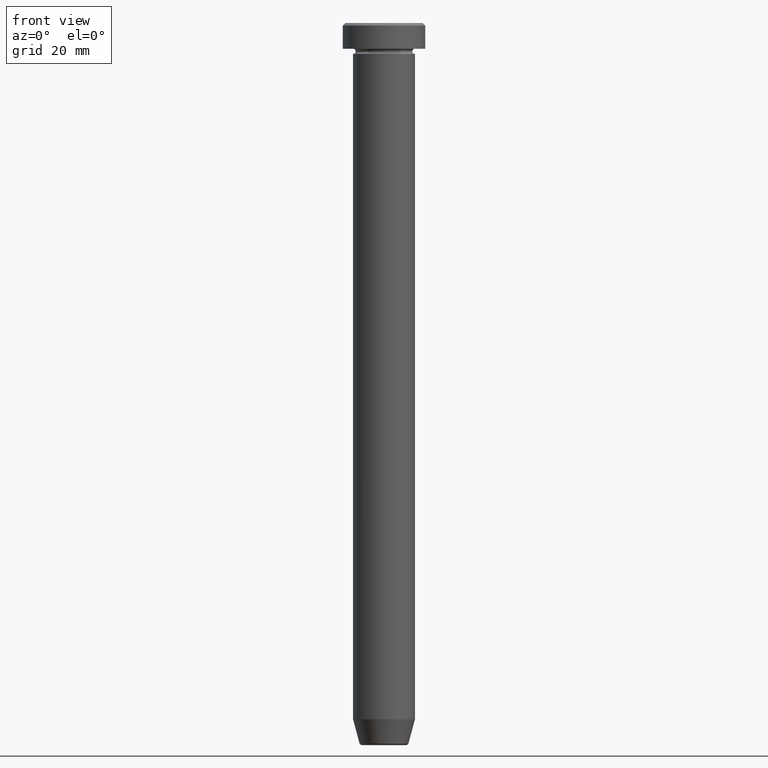
[diagram: clean part render]
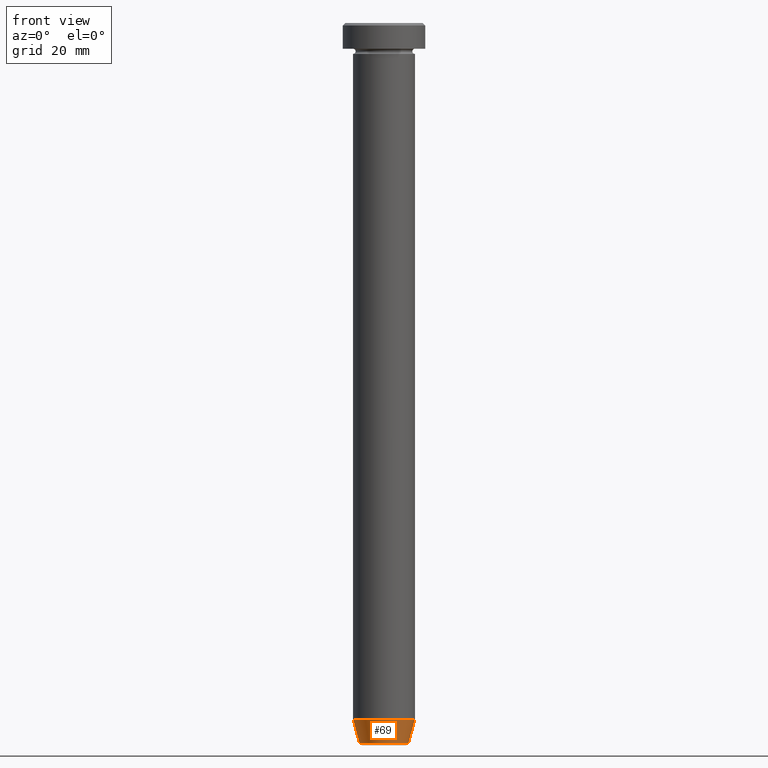
[diagram: same view with one face highlighted and labeled with its STEP entity id]
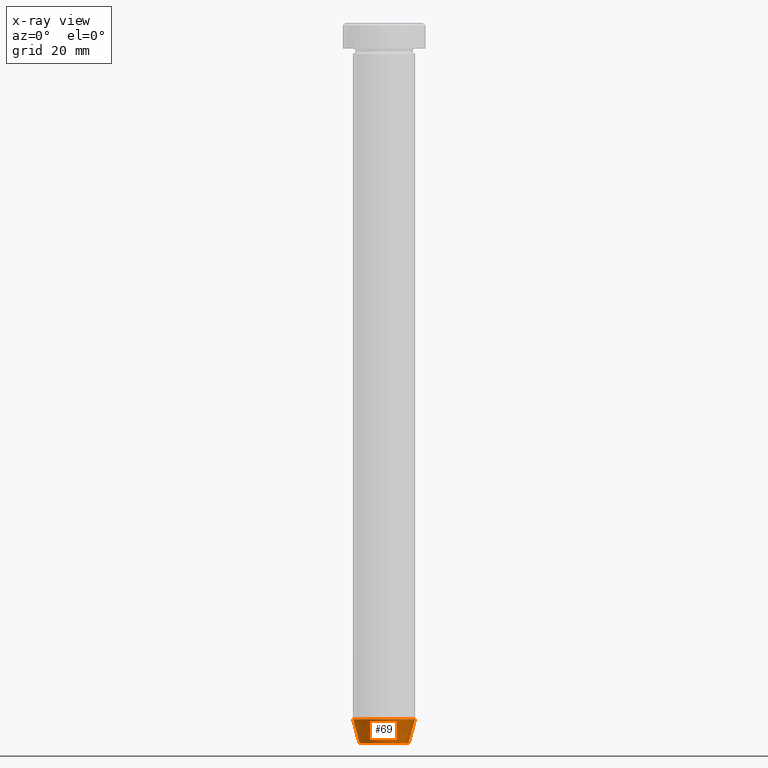
[diagram: x-ray of the same camera — body ghosted, the highlighted face saturated]
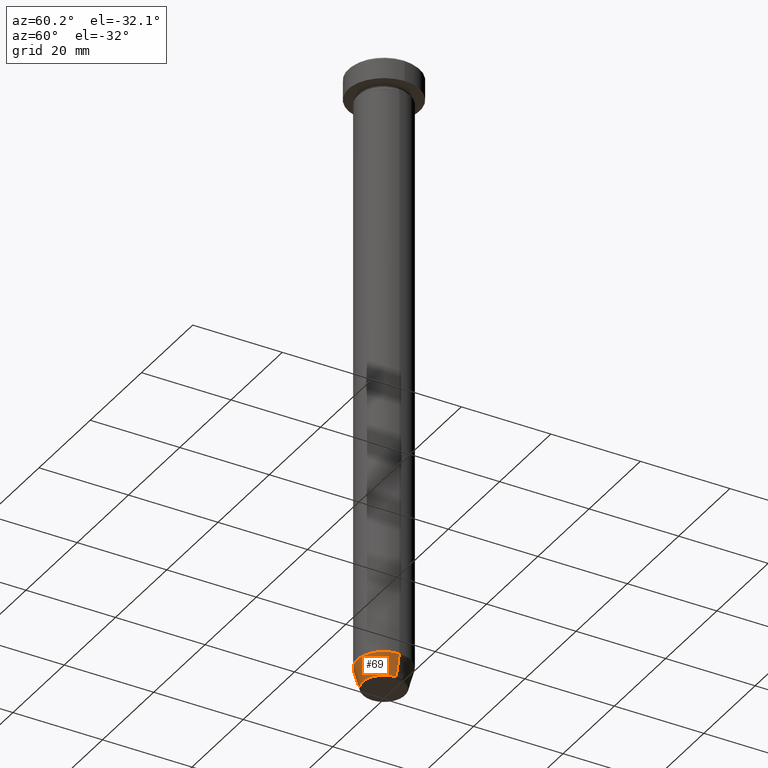
[diagram: same view with one face highlighted and labeled with its STEP entity id]
A machine part, front view. The second image highlights one B-rep face of the part: STEP entity #69.
The next image is the same camera in x-ray: the body ghosted, the highlighted face saturated — about 0% of this face is hidden behind the body in this view.
A second angle (auxiliary view) of the same face is appended — the face is thin or edge-on in the first view.
In plain terms, the highlighted conical surface has half-angle 15 deg.
Its self-contained STEP definition (entity closure, byte-faithful):
#37 = VERTEX_POINT ( 'NONE', #386 ) ;
#62 = CARTESIAN_POINT ( 'NONE',  ( -6.000000000000000000, 7.347880794884119736E-16, -135.0000000000000000 ) ) ;
#66 = VERTEX_POINT ( 'NONE', #313 ) ;
#69 = ADVANCED_FACE ( 'NONE', ( #496 ), #160, .T. ) ;
#87 = CARTESIAN_POINT ( 'NONE',  ( 0.000000000000000000, 0.000000000000000000, -140.0000000000000000 ) ) ;
#96 = CIRCLE ( 'NONE', #505, 6.000000000000000000 ) ;
#125 = DIRECTION ( 'NONE',  ( 1.000000000000000000, 0.000000000000000000, 0.000000000000000000 ) ) ;
#160 = CONICAL_SURFACE ( 'NONE', #489, 4.660254037844383745, 0.2617993877991497409 ) ;
#193 = CARTESIAN_POINT ( 'NONE',  ( 4.660254037844383745, 0.000000000000000000, -140.0000000000000000 ) ) ;
#202 = ORIENTED_EDGE ( 'NONE', *, *, #500, .F. ) ;
#216 = ORIENTED_EDGE ( 'NONE', *, *, #362, .T. ) ;
#245 = DIRECTION ( 'NONE',  ( -0.2588190451025210170, 3.169619151431768639E-17, 0.9659258262890680902 ) ) ;
#299 = DIRECTION ( 'NONE',  ( -0.000000000000000000, -0.000000000000000000, 1.000000000000000000 ) ) ;
#310 = EDGE_LOOP ( 'NONE', ( #202, #341, #216, #425 ) ) ;
#313 = CARTESIAN_POINT ( 'NONE',  ( 4.759553456999435994, 0.000000000000000000, -139.6294095225512990 ) ) ;
#328 = CARTESIAN_POINT ( 'NONE',  ( 0.000000000000000000, 0.000000000000000000, -135.0000000000000000 ) ) ;
#332 = AXIS2_PLACEMENT_3D ( 'NONE', #436, #299, #511 ) ;
#333 = VECTOR ( 'NONE', #245, 1000.000000000000114 ) ;
#341 = ORIENTED_EDGE ( 'NONE', *, *, #432, .T. ) ;
#362 = EDGE_CURVE ( 'NONE', #66, #37, #368, .T. ) ;
#367 = EDGE_CURVE ( 'NONE', #504, #37, #96, .T. ) ;
#368 = LINE ( 'NONE', #193, #597 ) ;
#373 = VERTEX_POINT ( 'NONE', #474 ) ;
#386 = CARTESIAN_POINT ( 'NONE',  ( 6.000000000000000000, 0.000000000000000000, -135.0000000000000000 ) ) ;
#425 = ORIENTED_EDGE ( 'NONE', *, *, #367, .F. ) ;
#432 = EDGE_CURVE ( 'NONE', #373, #66, #587, .T. ) ;
#436 = CARTESIAN_POINT ( 'NONE',  ( 0.000000000000000000, 0.000000000000000000, -139.6294095225512990 ) ) ;
#438 = CARTESIAN_POINT ( 'NONE',  ( -4.660254037844383745, 5.707165190659652868E-16, -140.0000000000000000 ) ) ;
#447 = DIRECTION ( 'NONE',  ( -0.000000000000000000, -0.000000000000000000, 1.000000000000000000 ) ) ;
#474 = CARTESIAN_POINT ( 'NONE',  ( -4.759553456999435994, 6.588326350684600291E-16, -139.6294095225512990 ) ) ;
#477 = LINE ( 'NONE', #438, #333 ) ;
#489 = AXIS2_PLACEMENT_3D ( 'NONE', #87, #447, #125 ) ;
#496 = FACE_OUTER_BOUND ( 'NONE', #310, .T. ) ;
#499 = DIRECTION ( 'NONE',  ( -0.000000000000000000, -0.000000000000000000, 1.000000000000000000 ) ) ;
#500 = EDGE_CURVE ( 'NONE', #373, #504, #477, .T. ) ;
#504 = VERTEX_POINT ( 'NONE', #62 ) ;
#505 = AXIS2_PLACEMENT_3D ( 'NONE', #328, #499, #516 ) ;
#511 = DIRECTION ( 'NONE',  ( -1.000000000000000000, 0.000000000000000000, 0.000000000000000000 ) ) ;
#516 = DIRECTION ( 'NONE',  ( 1.000000000000000000, 0.000000000000000000, 0.000000000000000000 ) ) ;
#542 = DIRECTION ( 'NONE',  ( 0.2588190451025210170, 0.000000000000000000, 0.9659258262890680902 ) ) ;
#587 = CIRCLE ( 'NONE', #332, 4.759553456999435994 ) ;
#597 = VECTOR ( 'NONE', #542, 1000.000000000000114 ) ;